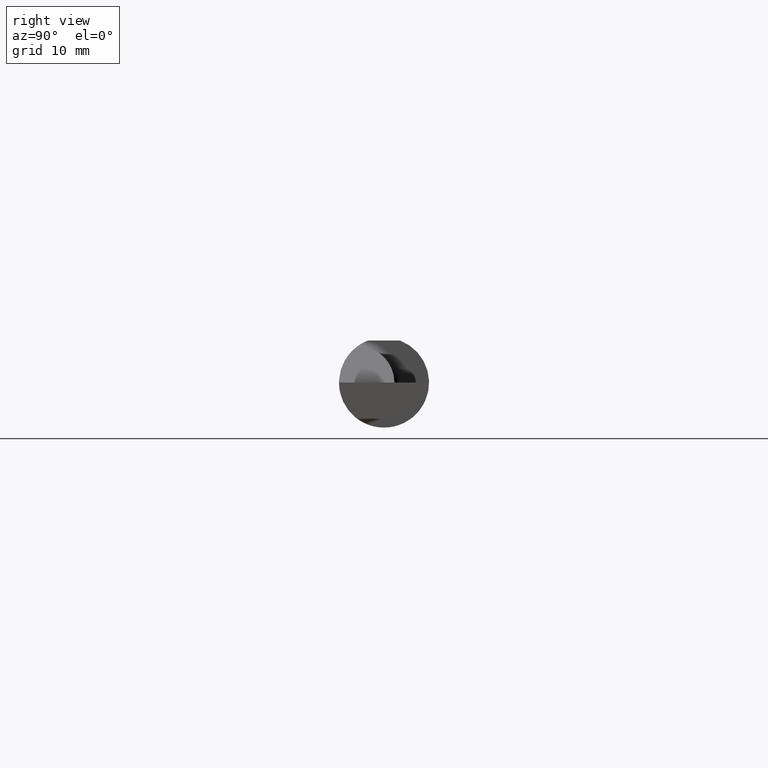
[diagram: clean part render]
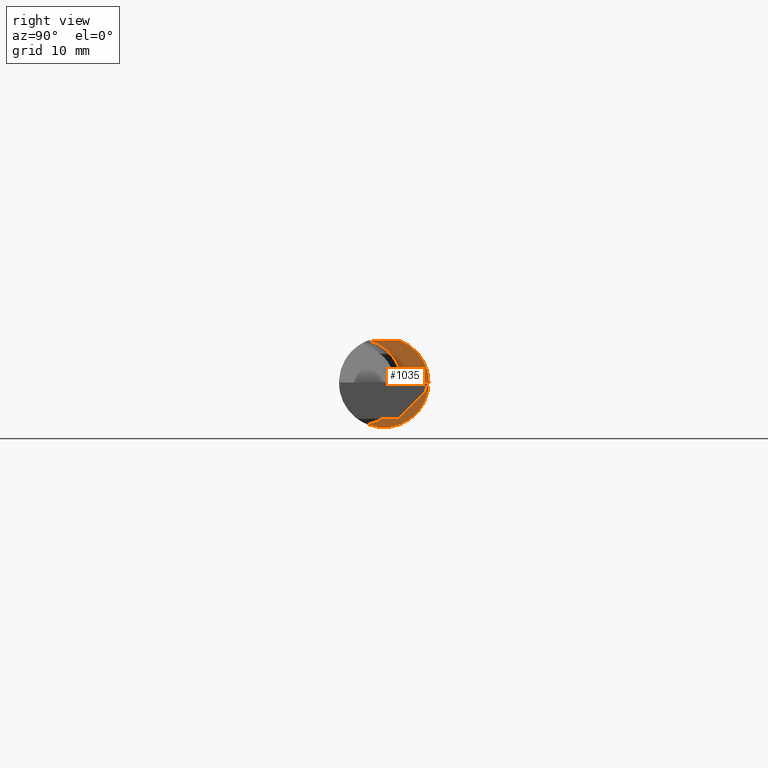
[diagram: same view with one face highlighted and labeled with its STEP entity id]
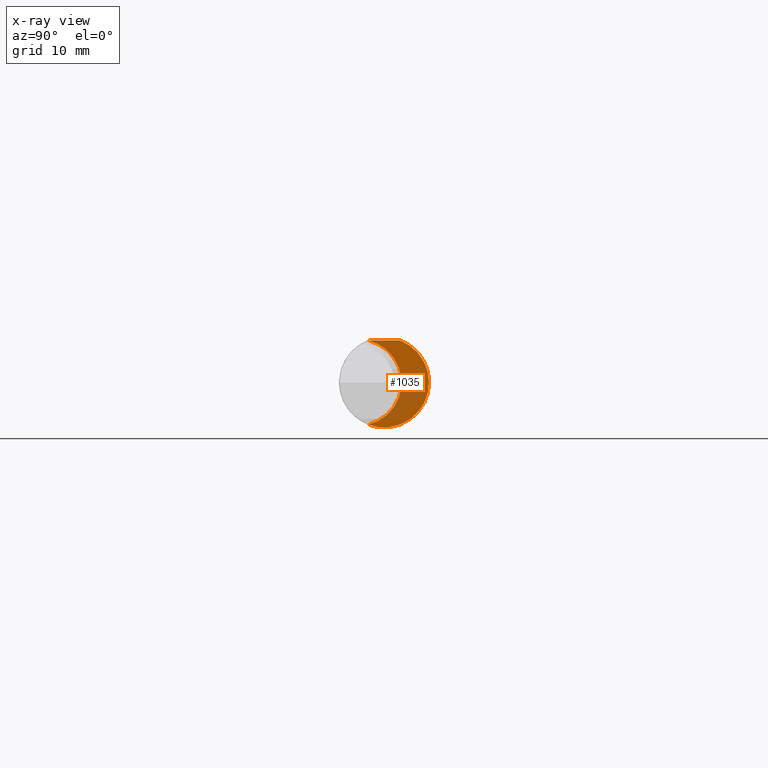
[diagram: x-ray of the same camera — body ghosted, the highlighted face saturated]
A machine part, right view. The second image highlights one B-rep face of the part: STEP entity #1035.
The next image is the same camera in x-ray: the body ghosted, the highlighted face saturated — about 30% of this face is hidden behind the body in this view.
In plain terms, the highlighted planar face has unit normal (1, 0, 0).
Its self-contained STEP definition (entity closure, byte-faithful):
#6 = CIRCLE ( 'NONE', #791, 0.1560999999999999888 ) ;
#9 = DIRECTION ( 'NONE',  ( 1.000000000000000000, 0.000000000000000000, 0.000000000000000000 ) ) ;
#30 = AXIS2_PLACEMENT_3D ( 'NONE', #810, #385, #723 ) ;
#54 = EDGE_CURVE ( 'NONE', #752, #766, #463, .T. ) ;
#86 = CIRCLE ( 'NONE', #364, 0.1499999999999999944 ) ;
#132 = FACE_OUTER_BOUND ( 'NONE', #855, .T. ) ;
#149 = CARTESIAN_POINT ( 'NONE',  ( 1.699999999999999956, -0.05497272050753899270, 0.1460999999999999799 ) ) ;
#196 = DIRECTION ( 'NONE',  ( 0.000000000000000000, 0.000000000000000000, 1.000000000000000000 ) ) ;
#240 = VERTEX_POINT ( 'NONE', #242 ) ;
#242 = CARTESIAN_POINT ( 'NONE',  ( 1.700000000000000178, -0.05502817059483720158, 0.1460791239054557156 ) ) ;
#313 = DIRECTION ( 'NONE',  ( -0.000000000000000000, 1.000000000000000000, 0.000000000000000000 ) ) ;
#315 = DIRECTION ( 'NONE',  ( 0.000000000000000000, 0.000000000000000000, -1.000000000000000000 ) ) ;
#323 = VECTOR ( 'NONE', #313, 39.37007874015748143 ) ;
#338 = ORIENTED_EDGE ( 'NONE', *, *, #839, .T. ) ;
#339 = CARTESIAN_POINT ( 'NONE',  ( 1.699999999999999956, 0.05497272050753900657, 0.1460999999999999799 ) ) ;
#343 = DIRECTION ( 'NONE',  ( -1.000000000000000000, -0.000000000000000000, -0.000000000000000000 ) ) ;
#350 = CARTESIAN_POINT ( 'NONE',  ( 1.700000000000000178, -0.08909999999999998477, 0.000000000000000000 ) ) ;
#364 = AXIS2_PLACEMENT_3D ( 'NONE', #350, #343, #196 ) ;
#367 = ORIENTED_EDGE ( 'NONE', *, *, #719, .T. ) ;
#385 = DIRECTION ( 'NONE',  ( 1.000000000000000000, 0.000000000000000000, 0.000000000000000000 ) ) ;
#387 = CARTESIAN_POINT ( 'NONE',  ( 1.700000000000000178, -0.05502817059483720158, -0.1460791239054557156 ) ) ;
#463 = LINE ( 'NONE', #801, #323 ) ;
#470 = PLANE ( 'NONE',  #30 ) ;
#514 = CARTESIAN_POINT ( 'NONE',  ( 1.699999999999999956, 0.000000000000000000, 0.000000000000000000 ) ) ;
#539 = VERTEX_POINT ( 'NONE', #387 ) ;
#719 = EDGE_CURVE ( 'NONE', #752, #240, #927, .T. ) ;
#723 = DIRECTION ( 'NONE',  ( 0.000000000000000000, 0.000000000000000000, -1.000000000000000000 ) ) ;
#737 = DIRECTION ( 'NONE',  ( 1.000000000000000000, 0.000000000000000000, 0.000000000000000000 ) ) ;
#752 = VERTEX_POINT ( 'NONE', #149 ) ;
#766 = VERTEX_POINT ( 'NONE', #339 ) ;
#770 = ORIENTED_EDGE ( 'NONE', *, *, #873, .T. ) ;
#777 = DIRECTION ( 'NONE',  ( 0.000000000000000000, 0.000000000000000000, -1.000000000000000000 ) ) ;
#791 = AXIS2_PLACEMENT_3D ( 'NONE', #514, #9, #777 ) ;
#801 = CARTESIAN_POINT ( 'NONE',  ( 1.699999999999999956, -0.1561000000000000165, 0.1460999999999999799 ) ) ;
#810 = CARTESIAN_POINT ( 'NONE',  ( 1.699999999999999956, 0.2358999999999999986, 0.000000000000000000 ) ) ;
#839 = EDGE_CURVE ( 'NONE', #240, #539, #86, .T. ) ;
#855 = EDGE_LOOP ( 'NONE', ( #770, #1011, #367, #338 ) ) ;
#873 = EDGE_CURVE ( 'NONE', #539, #766, #6, .T. ) ;
#902 = AXIS2_PLACEMENT_3D ( 'NONE', #907, #737, #315 ) ;
#907 = CARTESIAN_POINT ( 'NONE',  ( 1.699999999999999956, 0.000000000000000000, 0.000000000000000000 ) ) ;
#927 = CIRCLE ( 'NONE', #902, 0.1560999999999999888 ) ;
#1011 = ORIENTED_EDGE ( 'NONE', *, *, #54, .F. ) ;
#1035 = ADVANCED_FACE ( 'NONE', ( #132 ), #470, .T. ) ;